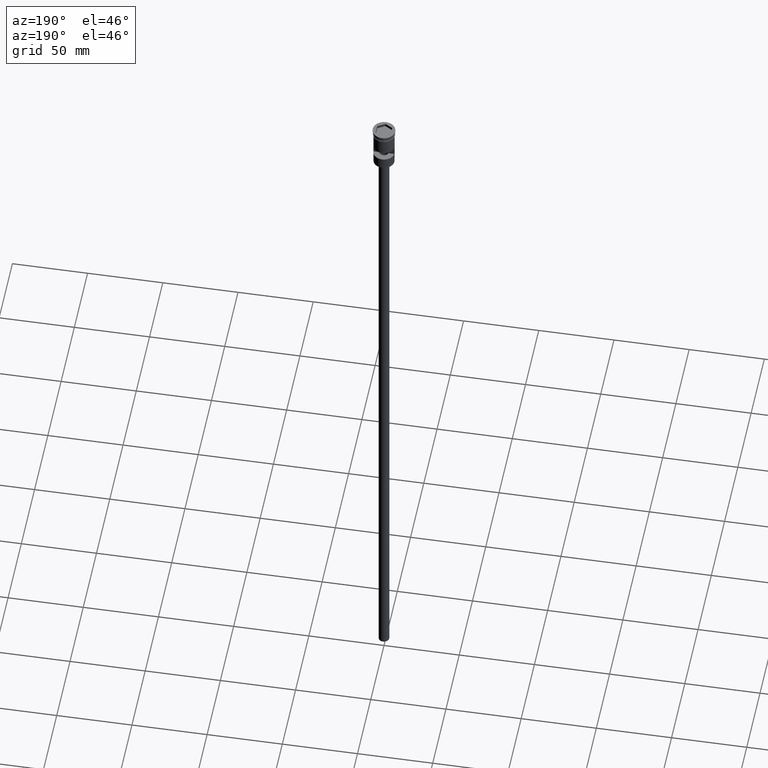
[diagram: clean part render]
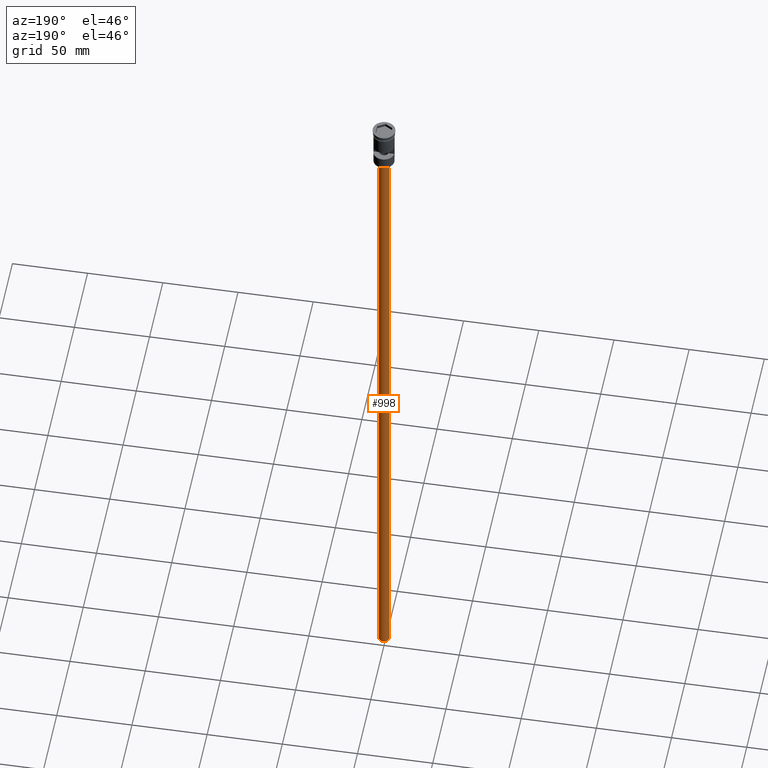
[diagram: same view with one face highlighted and labeled with its STEP entity id]
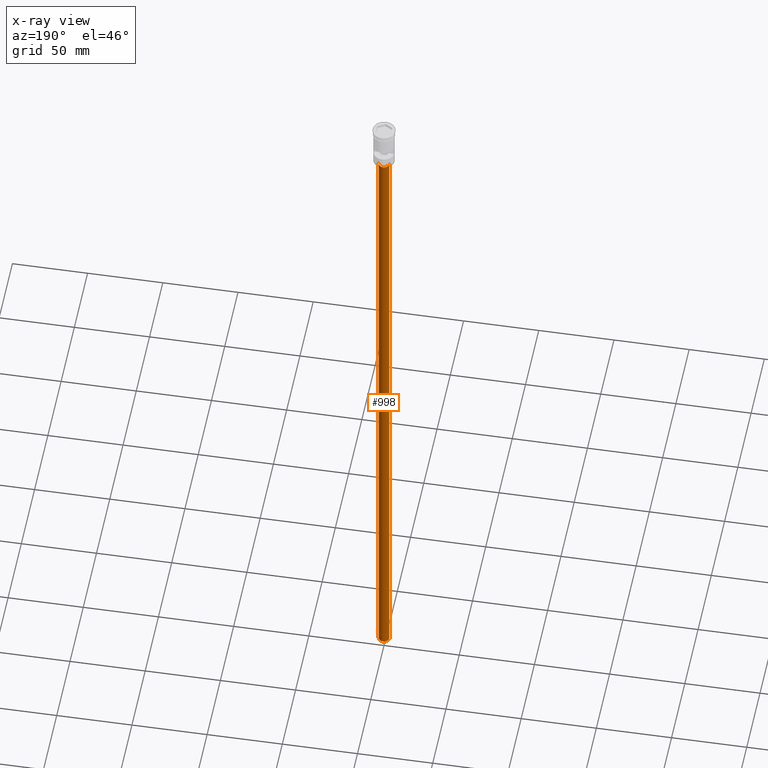
[diagram: x-ray of the same camera — body ghosted, the highlighted face saturated]
A machine part, auxiliary view. The second image highlights one B-rep face of the part: STEP entity #998.
The next image is the same camera in x-ray: the body ghosted, the highlighted face saturated — about 0% of this face is hidden behind the body in this view.
In plain terms, the highlighted cylindrical surface (edge-blend (fillet) strip) has radius 3.5 mm, axis along (-0, -0, 1).
Its self-contained STEP definition (entity closure, byte-faithful):
#2 = CARTESIAN_POINT ( 'NONE',  ( 0.000000000000000000, 0.000000000000000000, -478.5000000000000568 ) ) ;
#69 = EDGE_LOOP ( 'NONE', ( #813, #118, #206, #957 ) ) ;
#81 = DIRECTION ( 'NONE',  ( -0.000000000000000000, -0.000000000000000000, 1.000000000000000000 ) ) ;
#109 = CIRCLE ( 'NONE', #1317, 3.500000000000000444 ) ;
#118 = ORIENTED_EDGE ( 'NONE', *, *, #553, .T. ) ;
#206 = ORIENTED_EDGE ( 'NONE', *, *, #653, .T. ) ;
#217 = LINE ( 'NONE', #1214, #1348 ) ;
#249 = VERTEX_POINT ( 'NONE', #1576 ) ;
#348 = DIRECTION ( 'NONE',  ( 0.000000000000000000, 0.000000000000000000, -1.000000000000000000 ) ) ;
#396 = CARTESIAN_POINT ( 'NONE',  ( 3.500000000000000444, 0.000000000000000000, -478.5000000000000568 ) ) ;
#476 = VERTEX_POINT ( 'NONE', #1563 ) ;
#553 = EDGE_CURVE ( 'NONE', #249, #1580, #217, .T. ) ;
#554 = CARTESIAN_POINT ( 'NONE',  ( 0.000000000000000000, 0.000000000000000000, -478.5000000000000568 ) ) ;
#593 = CARTESIAN_POINT ( 'NONE',  ( 0.000000000000000000, 0.000000000000000000, -31.50000000000000000 ) ) ;
#653 = EDGE_CURVE ( 'NONE', #1580, #476, #1401, .T. ) ;
#813 = ORIENTED_EDGE ( 'NONE', *, *, #1561, .F. ) ;
#836 = CYLINDRICAL_SURFACE ( 'NONE', #1421, 3.500000000000000444 ) ;
#863 = DIRECTION ( 'NONE',  ( 1.000000000000000000, 0.000000000000000000, 0.000000000000000000 ) ) ;
#896 = VERTEX_POINT ( 'NONE', #1061 ) ;
#957 = ORIENTED_EDGE ( 'NONE', *, *, #1461, .F. ) ;
#972 = DIRECTION ( 'NONE',  ( -1.000000000000000000, 0.000000000000000000, 0.000000000000000000 ) ) ;
#994 = DIRECTION ( 'NONE',  ( -0.000000000000000000, -0.000000000000000000, 1.000000000000000000 ) ) ;
#998 = ADVANCED_FACE ( 'NONE', ( #1480 ), #836, .T. ) ;
#1029 = LINE ( 'NONE', #396, #1138 ) ;
#1030 = AXIS2_PLACEMENT_3D ( 'NONE', #593, #348, #972 ) ;
#1044 = DIRECTION ( 'NONE',  ( 0.000000000000000000, 0.000000000000000000, -1.000000000000000000 ) ) ;
#1061 = CARTESIAN_POINT ( 'NONE',  ( 3.500000000000000444, 0.000000000000000000, -478.5000000000000568 ) ) ;
#1138 = VECTOR ( 'NONE', #1518, 1000.000000000000000 ) ;
#1214 = CARTESIAN_POINT ( 'NONE',  ( -3.500000000000000444, 4.286263797015737088E-16, -478.5000000000000568 ) ) ;
#1317 = AXIS2_PLACEMENT_3D ( 'NONE', #554, #1044, #1543 ) ;
#1348 = VECTOR ( 'NONE', #81, 1000.000000000000000 ) ;
#1401 = CIRCLE ( 'NONE', #1030, 3.500000000000000444 ) ;
#1421 = AXIS2_PLACEMENT_3D ( 'NONE', #2, #994, #863 ) ;
#1461 = EDGE_CURVE ( 'NONE', #896, #476, #1029, .T. ) ;
#1480 = FACE_OUTER_BOUND ( 'NONE', #69, .T. ) ;
#1518 = DIRECTION ( 'NONE',  ( -0.000000000000000000, -0.000000000000000000, 1.000000000000000000 ) ) ;
#1543 = DIRECTION ( 'NONE',  ( -1.000000000000000000, 0.000000000000000000, 0.000000000000000000 ) ) ;
#1561 = EDGE_CURVE ( 'NONE', #249, #896, #109, .T. ) ;
#1563 = CARTESIAN_POINT ( 'NONE',  ( 3.500000000000000444, 0.000000000000000000, -31.50000000000000000 ) ) ;
#1567 = CARTESIAN_POINT ( 'NONE',  ( -3.500000000000000444, 4.286263797015737088E-16, -31.50000000000000000 ) ) ;
#1576 = CARTESIAN_POINT ( 'NONE',  ( -3.500000000000000444, 4.286263797015737088E-16, -478.5000000000000568 ) ) ;
#1580 = VERTEX_POINT ( 'NONE', #1567 ) ;